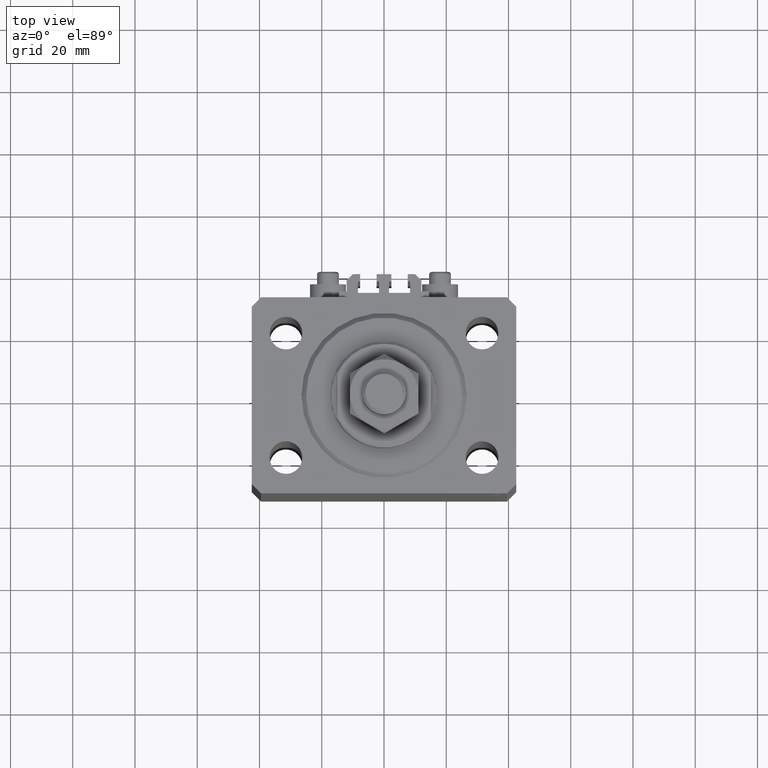
[diagram: clean part render]
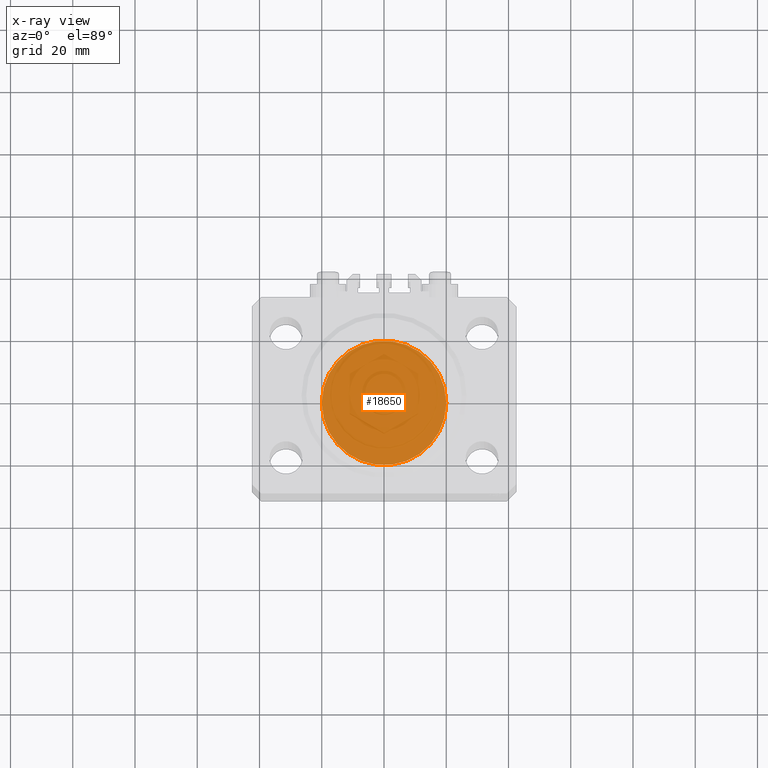
[diagram: x-ray — body ghosted, one internal face saturated and labeled with its STEP entity id]
A machine part, top view, then the same camera in x-ray: the body is ghosted and one INTERNAL B-rep face — a face not visible from any outside direction — is saturated and labeled: STEP entity #18650.
In plain terms, the highlighted planar face has unit normal (0, 0, 1).
Its self-contained STEP definition (entity closure, byte-faithful):
#2674 = FACE_OUTER_BOUND ( 'NONE', #17211, .T. ) ;
#2703 = CARTESIAN_POINT ( 'NONE',  ( -20.00000000000000000, 0.000000000000000000, 0.000000000000000000 ) ) ;
#3610 = CARTESIAN_POINT ( 'NONE',  ( 20.00000000000000000, 2.449293598294706513E-15, 0.000000000000000000 ) ) ;
#4164 = AXIS2_PLACEMENT_3D ( 'NONE', #18802, #11143, #22016 ) ;
#6866 = DIRECTION ( 'NONE',  ( 1.000000000000000000, 0.000000000000000000, -0.000000000000000000 ) ) ;
#11143 = DIRECTION ( 'NONE',  ( 0.000000000000000000, 0.000000000000000000, 1.000000000000000000 ) ) ;
#13968 = AXIS2_PLACEMENT_3D ( 'NONE', #17731, #32349, #6866 ) ;
#15200 = CIRCLE ( 'NONE', #4164, 20.00000000000000000 ) ;
#17010 = PLANE ( 'NONE',  #13968 ) ;
#17211 = EDGE_LOOP ( 'NONE', ( #35711, #23803 ) ) ;
#17262 = CARTESIAN_POINT ( 'NONE',  ( 0.000000000000000000, 0.000000000000000000, 0.000000000000000000 ) ) ;
#17731 = CARTESIAN_POINT ( 'NONE',  ( 0.000000000000000000, 0.000000000000000000, 0.000000000000000000 ) ) ;
#18650 = ADVANCED_FACE ( 'NONE', ( #2674 ), #17010, .F. ) ;
#18802 = CARTESIAN_POINT ( 'NONE',  ( 0.000000000000000000, 0.000000000000000000, 0.000000000000000000 ) ) ;
#21086 = AXIS2_PLACEMENT_3D ( 'NONE', #17262, #44475, #48443 ) ;
#22016 = DIRECTION ( 'NONE',  ( 1.000000000000000000, 0.000000000000000000, 0.000000000000000000 ) ) ;
#23803 = ORIENTED_EDGE ( 'NONE', *, *, #41082, .F. ) ;
#29837 = VERTEX_POINT ( 'NONE', #3610 ) ;
#30736 = EDGE_CURVE ( 'NONE', #44663, #29837, #46378, .T. ) ;
#32349 = DIRECTION ( 'NONE',  ( 0.000000000000000000, 0.000000000000000000, 1.000000000000000000 ) ) ;
#35711 = ORIENTED_EDGE ( 'NONE', *, *, #30736, .F. ) ;
#41082 = EDGE_CURVE ( 'NONE', #29837, #44663, #15200, .T. ) ;
#44475 = DIRECTION ( 'NONE',  ( 0.000000000000000000, 0.000000000000000000, 1.000000000000000000 ) ) ;
#44663 = VERTEX_POINT ( 'NONE', #2703 ) ;
#46378 = CIRCLE ( 'NONE', #21086, 20.00000000000000000 ) ;
#48443 = DIRECTION ( 'NONE',  ( 1.000000000000000000, 0.000000000000000000, 0.000000000000000000 ) ) ;